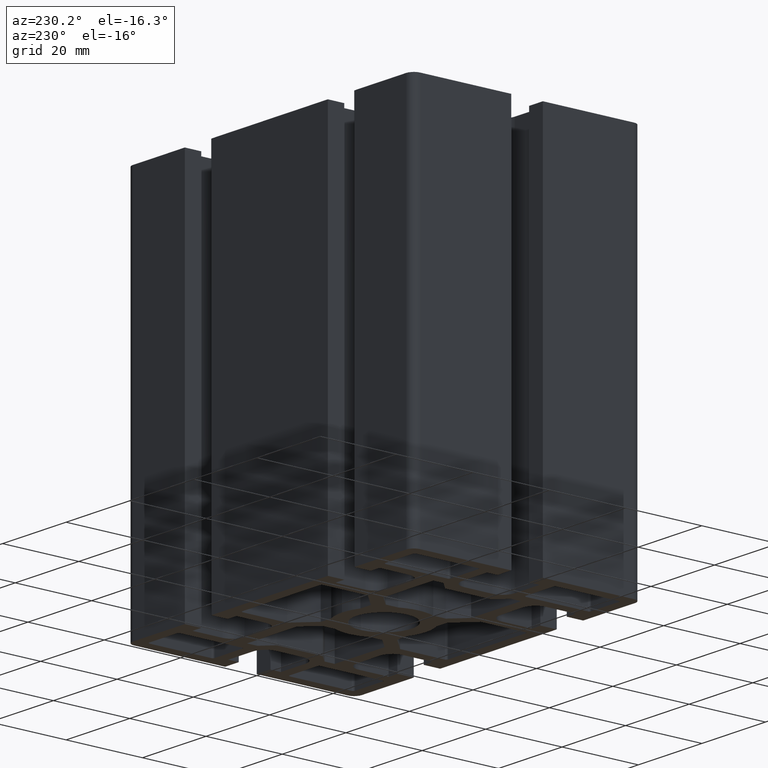
[diagram: clean part render]
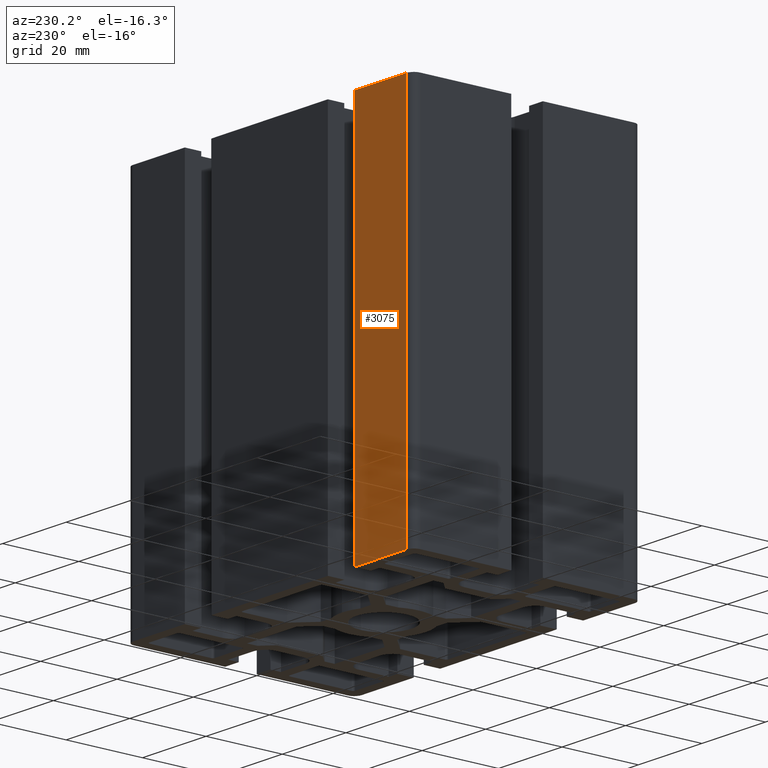
[diagram: same view with one face highlighted and labeled with its STEP entity id]
A machine part, auxiliary view. The second image highlights one B-rep face of the part: STEP entity #3075.
In plain terms, the highlighted planar face has unit normal (-0, 1, 0).
Its self-contained STEP definition (entity closure, byte-faithful):
#120=PLANE('',#3310);
#267=FACE_OUTER_BOUND('',#418,.T.);
#418=EDGE_LOOP('',(#2520,#2521,#2522,#2523));
#761=LINE('',#4953,#1118);
#762=LINE('',#4956,#1119);
#763=LINE('',#4958,#1120);
#764=LINE('',#4959,#1121);
#1118=VECTOR('',#4065,100.);
#1119=VECTOR('',#4068,16.3500008990246);
#1120=VECTOR('',#4069,16.3500008990246);
#1121=VECTOR('',#4070,100.);
#1519=VERTEX_POINT('',#4949);
#1520=VERTEX_POINT('',#4951);
#1521=VERTEX_POINT('',#4955);
#1522=VERTEX_POINT('',#4957);
#1945=EDGE_CURVE('',#1519,#1520,#761,.T.);
#1946=EDGE_CURVE('',#1521,#1519,#762,.T.);
#1947=EDGE_CURVE('',#1522,#1520,#763,.T.);
#1948=EDGE_CURVE('',#1521,#1522,#764,.T.);
#2520=ORIENTED_EDGE('',*,*,#1946,.T.);
#2521=ORIENTED_EDGE('',*,*,#1945,.T.);
#2522=ORIENTED_EDGE('',*,*,#1947,.F.);
#2523=ORIENTED_EDGE('',*,*,#1948,.F.);
#3075=ADVANCED_FACE('',(#267),#120,.T.);
#3310=AXIS2_PLACEMENT_3D('',#4954,#4066,#4067);
#4065=DIRECTION('',(0.,0.,1.));
#4066=DIRECTION('center_axis',(-6.87183877150543E-13,1.,0.));
#4067=DIRECTION('ref_axis',(-1.,-6.87094825480017E-13,0.));
#4068=DIRECTION('',(-1.,-6.87183877150543E-13,0.));
#4069=DIRECTION('',(-1.,-6.87183877150543E-13,0.));
#4070=DIRECTION('',(0.,0.,1.));
#4949=CARTESIAN_POINT('',(-43.0000000000035,29.9999999999958,0.));
#4951=CARTESIAN_POINT('',(-43.0000000000035,29.9999999999958,100.));
#4953=CARTESIAN_POINT('',(-43.0000000000035,29.9999999999958,0.));
#4954=CARTESIAN_POINT('Origin',(-26.6499991009789,30.000000000007,0.));
#4955=CARTESIAN_POINT('',(-26.6499991009789,30.000000000007,0.));
#4956=CARTESIAN_POINT('',(-26.6499991009789,30.000000000007,0.));
#4957=CARTESIAN_POINT('',(-26.6499991009789,30.000000000007,100.));
#4958=CARTESIAN_POINT('',(-26.6499991009789,30.000000000007,100.));
#4959=CARTESIAN_POINT('',(-26.6499991009789,30.000000000007,0.));